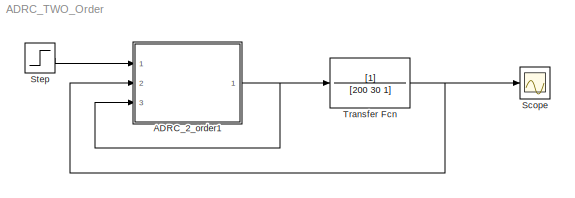
MODEL ADRC_TWO_Order
KIND model
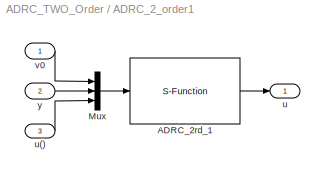
BLOCK [SubSystem] ADRC_2_order1
  AncestorBlock = ADRC/ADRC/ADRC_2rd/ADRC_2_order1
  FunctionWithSeparateData = off
  MaskCallbackString = |||||||||
  MaskEnableString = on,on,on,on,on,on,on,on,on,on
  MaskHideContents = off
  MaskIconFrame = on
  MaskIconOpaque = on
  MaskIconRotate = none
  MaskIconUnits = autoscale
  MaskPortRotate = default
  MaskPromptString = TD r0|TD h|B01=|B02=|B03=|D=|b0=|c=|r1=|h1=
  MaskStyleString = edit,edit,edit,edit,edit,edit,edit,edit,edit,edit
  MaskToolTipString = on,on,on,on,on,on,on,on,on,on
  MaskTunableValueString = on,on,on,on,on,on,on,on,on,on
  MaskValueString = 0|0.01|100|300|1000|0.01|1|0.3|5|0.03
  MaskVariables = r0=@1;h=@2;B01=@3;B02=@4;B03=@5;D=@6;b0=@7;c=@8;r1=@9;h1=@10;
  MaskVisibilityString = on,on,on,on,on,on,on,on,on,on
  MinAlgLoopOccurrences = off
  Opaque = off
  Ports = [3, 1]
  PropExecContextOutsideSubsystem = off
  RTWSystemCode = Auto
  RequestExecContextInheritance = off
  SID = 7
BLOCK [S-Function] ADRC_2_order1/ADRC_2rd_1
  EnableBusSupport = off
  FunctionName = ADRC_Two_order
  Parameters = r0,h,B01,B02,B03,D,b0,c,r1,h1
  Ports = [1, 1]
  SID = 7:62
BLOCK [Mux] ADRC_2_order1/Mux
  DisplayOption = bar
  Inputs = 3
  Ports = [3, 1]
  SID = 7:144
BLOCK [Outport] ADRC_2_order1/u
  IconDisplay = Port number
  SID = 7:141
BLOCK [Inport] ADRC_2_order1/u()
  IconDisplay = Port number
  Port = 3
  SID = 7:145
BLOCK [Inport] ADRC_2_order1/v0
  IconDisplay = Port number
  SID = 7:142
BLOCK [Inport] ADRC_2_order1/y
  IconDisplay = Port number
  Port = 2
  SID = 7:143
BLOCK [Scope] Scope
  DataFormat = StructureWithTime
  Floating = off
  NumInputPorts = 1
  Ports = [1]
  SID = 5
  SampleTime = 0
  YMax = 300000
  YMin = -200000
  ZoomMode = yonly
BLOCK [Step] Step
  SID = 2
  SampleTime = 0
  Time = 0
BLOCK [TransferFcn] Transfer Fcn
  Denominator = [200  30 1]
  SID = 6
LINE ADRC_2_order1/ADRC_2rd_1:1 -> ADRC_2_order1/u:1
LINE ADRC_2_order1/Mux:1 -> ADRC_2_order1/ADRC_2rd_1:1
LINE ADRC_2_order1/u():1 -> ADRC_2_order1/Mux:3
LINE ADRC_2_order1/v0:1 -> ADRC_2_order1/Mux:1
LINE ADRC_2_order1/y:1 -> ADRC_2_order1/Mux:2
NET ADRC_2_order1:1 -> ADRC_2_order1:3, Transfer Fcn:1
LINE Step:1 -> ADRC_2_order1:1
NET Transfer Fcn:1 -> ADRC_2_order1:2, Scope:1
note: NET lines group one-source signal fan-out (src -> all destinations, sorted); 1:1 wires keep LINE
